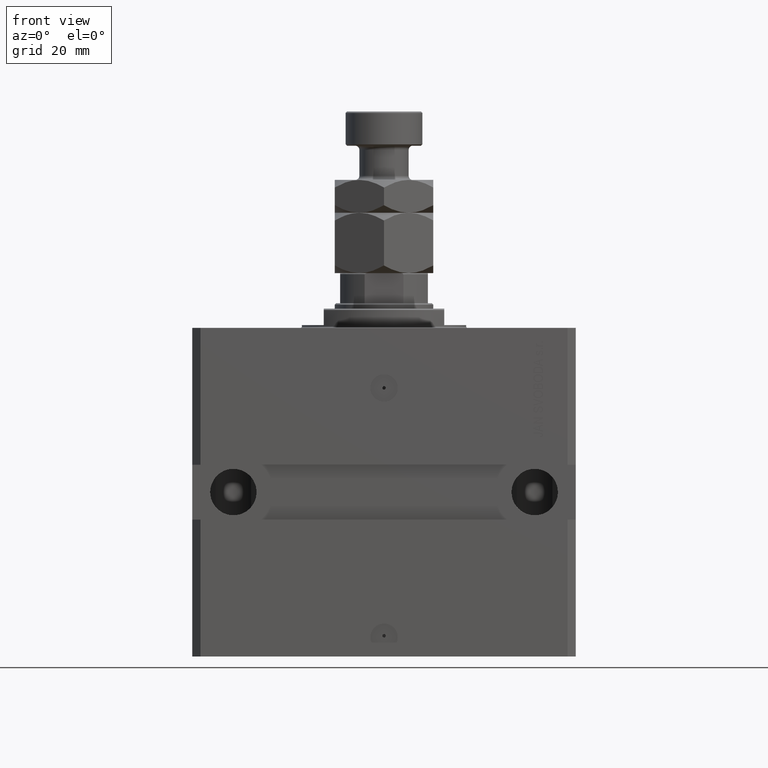
[diagram: clean part render]
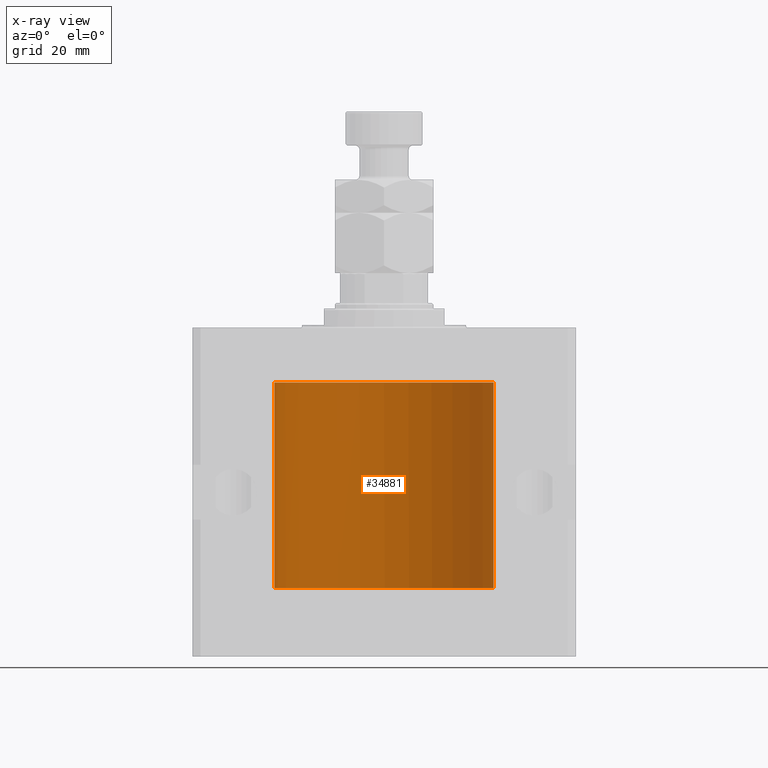
[diagram: x-ray — body ghosted, one internal face saturated and labeled with its STEP entity id]
A machine part, front view, then the same camera in x-ray: the body is ghosted and one INTERNAL B-rep face — a face not visible from any outside direction — is saturated and labeled: STEP entity #34881.
In plain terms, the highlighted cylindrical surface (partial cylindrical patch) has radius 40 mm, axis along (0, 0, 1).
Its self-contained STEP definition (entity closure, byte-faithful):
#1525 = CARTESIAN_POINT ( 'NONE',  ( -39.99627192929612107, 0.5584288736112177354, -94.67445463238748005 ) ) ;
#1540 = CARTESIAN_POINT ( 'NONE',  ( -39.99883108112248919, 0.3150272514608761787, -34.45401719637956717 ) ) ;
#2377 = EDGE_CURVE ( 'NONE', #7996, #30563, #8765, .T. ) ;
#4667 = AXIS2_PLACEMENT_3D ( 'NONE', #36893, #17590, #6495 ) ;
#4726 = CARTESIAN_POINT ( 'NONE',  ( -40.00000000000000000, 1.067655236296513633E-14, -34.37500000000000000 ) ) ;
#6157 = ORIENTED_EDGE ( 'NONE', *, *, #24530, .F. ) ;
#6243 = CARTESIAN_POINT ( 'NONE',  ( -40.00000000000012790, 9.803334896741571174E-13, -94.37499999999168665 ) ) ;
#6401 = DIRECTION ( 'NONE',  ( 0.000000000000000000, 0.000000000000000000, 1.000000000000000000 ) ) ;
#6495 = DIRECTION ( 'NONE',  ( 1.000000000000000000, 0.000000000000000000, 0.000000000000000000 ) ) ;
#7996 = VERTEX_POINT ( 'NONE', #27948 ) ;
#8765 = CIRCLE ( 'NONE', #21115, 40.00000000000000000 ) ;
#8773 = CARTESIAN_POINT ( 'NONE',  ( -40.00000000000000000, 0.08259175989844856625, -34.37500000000000711 ) ) ;
#9964 = CARTESIAN_POINT ( 'NONE',  ( -39.99819482034362039, 0.3843641341271077372, -34.50046008996472580 ) ) ;
#9989 = CARTESIAN_POINT ( 'NONE',  ( 0.000000000000000000, 0.000000000000000000, -20.00000000000000355 ) ) ;
#10212 = CARTESIAN_POINT ( 'NONE',  ( -39.99626798708276709, 0.5587118831704992461, -35.32511485424845432 ) ) ;
#10477 = CARTESIAN_POINT ( 'NONE',  ( -40.00000000000000000, 4.898587196589413026E-15, -95.00000000000000000 ) ) ;
#11755 = EDGE_CURVE ( 'NONE', #7996, #42630, #33236, .T. ) ;
#13793 = VECTOR ( 'NONE', #22103, 1000.000000000000000 ) ;
#13843 = CARTESIAN_POINT ( 'NONE',  ( -40.00000000000004974, 3.462873814982701370E-13, -35.62500000000321165 ) ) ;
#14355 = CARTESIAN_POINT ( 'NONE',  ( 40.00000000000000000, 0.000000000000000000, -20.00000000000000355 ) ) ;
#14485 = CARTESIAN_POINT ( 'NONE',  ( -40.00000000000000000, 4.898587196589413026E-15, -20.00000000000000355 ) ) ;
#14674 = FACE_OUTER_BOUND ( 'NONE', #20963, .T. ) ;
#15291 = VERTEX_POINT ( 'NONE', #4726 ) ;
#15480 = ORIENTED_EDGE ( 'NONE', *, *, #28623, .T. ) ;
#16233 = CARTESIAN_POINT ( 'NONE',  ( -39.99511688944039633, 0.6250000000000124345, -95.00000000000000000 ) ) ;
#16470 = CARTESIAN_POINT ( 'NONE',  ( -39.99511688944039633, 0.6250000000000127676, -94.83492185971167032 ) ) ;
#17258 = DIRECTION ( 'NONE',  ( 1.000000000000000000, 0.000000000000000000, 0.000000000000000000 ) ) ;
#17590 = DIRECTION ( 'NONE',  ( -0.000000000000000000, -0.000000000000000000, 1.000000000000000000 ) ) ;
#20035 = EDGE_CURVE ( 'NONE', #31128, #30563, #24807, .T. ) ;
#20880 = CARTESIAN_POINT ( 'NONE',  ( 0.000000000000000000, 0.000000000000000000, -95.00000000000000000 ) ) ;
#20963 = EDGE_LOOP ( 'NONE', ( #6157, #23305, #23067, #22814, #15480, #40264, #37480 ) ) ;
#21115 = AXIS2_PLACEMENT_3D ( 'NONE', #20880, #6401, #17258 ) ;
#22059 = EDGE_CURVE ( 'NONE', #15291, #25588, #31527, .T. ) ;
#22103 = DIRECTION ( 'NONE',  ( -0.000000000000000000, -0.000000000000000000, 1.000000000000000000 ) ) ;
#22814 = ORIENTED_EDGE ( 'NONE', *, *, #11755, .T. ) ;
#23067 = ORIENTED_EDGE ( 'NONE', *, *, #2377, .F. ) ;
#23084 = VECTOR ( 'NONE', #28587, 1000.000000000000000 ) ;
#23305 = ORIENTED_EDGE ( 'NONE', *, *, #20035, .T. ) ;
#23310 = EDGE_CURVE ( 'NONE', #15291, #25823, #43399, .T. ) ;
#24530 = EDGE_CURVE ( 'NONE', #31128, #25588, #32924, .T. ) ;
#24699 = CARTESIAN_POINT ( 'NONE',  ( -39.99884667815961592, 0.3253863549934230548, -35.55855380835959778 ) ) ;
#24807 = B_SPLINE_CURVE_WITH_KNOTS ( 'NONE', 3,
 ( #42081, #27563, #31677, #1525, #16470, #16233 ),
 .UNSPECIFIED., .F., .F.,
 ( 4, 2, 4 ),
 ( 0.0009772540344090913447, 0.001465458787294959039, 0.001953663540180826733 ),
 .UNSPECIFIED. ) ;
#25022 = CARTESIAN_POINT ( 'NONE',  ( -40.00000000000000000, 4.898587196589413026E-15, -95.00000000000000000 ) ) ;
#25219 = CARTESIAN_POINT ( 'NONE',  ( -39.99511688944039633, 0.6250000000000124345, -95.00000000000000000 ) ) ;
#25513 = DIRECTION ( 'NONE',  ( -0.000000000000000000, -0.000000000000000000, 1.000000000000000000 ) ) ;
#25588 = VERTEX_POINT ( 'NONE', #13843 ) ;
#25823 = VERTEX_POINT ( 'NONE', #14485 ) ;
#27111 = CARTESIAN_POINT ( 'NONE',  ( -40.00000000000000000, 1.067655236296513633E-14, -34.37500000000000000 ) ) ;
#27563 = CARTESIAN_POINT ( 'NONE',  ( -39.99999999999998579, 0.1629608811977192317, -94.37500000000035527 ) ) ;
#27948 = CARTESIAN_POINT ( 'NONE',  ( 40.00000000000000000, 0.000000000000000000, -95.00000000000000000 ) ) ;
#28059 = CARTESIAN_POINT ( 'NONE',  ( -39.99511598657579725, 0.6250577762831023287, -35.16284024614854076 ) ) ;
#28587 = DIRECTION ( 'NONE',  ( -0.000000000000000000, -0.000000000000000000, 1.000000000000000000 ) ) ;
#28623 = EDGE_CURVE ( 'NONE', #42630, #25823, #36857, .T. ) ;
#30563 = VERTEX_POINT ( 'NONE', #25219 ) ;
#30664 = AXIS2_PLACEMENT_3D ( 'NONE', #9989, #46964, #43345 ) ;
#31128 = VERTEX_POINT ( 'NONE', #6243 ) ;
#31527 = B_SPLINE_CURVE_WITH_KNOTS ( 'NONE', 3,
 ( #27111, #8773, #34606, #1540, #9964, #39189, #39687, #28059, #10212, #24699, #39922, #32180 ),
 .UNSPECIFIED., .F., .F.,
 ( 4, 2, 2, 2, 2, 4 ),
 ( 1.036137471307501474E-18, 0.0002442581846113557891, 0.0004885163692227106023, 0.0009770327384454201205, 0.001465549107668129639, 0.001954065476890838940 ),
 .UNSPECIFIED. ) ;
#31677 = CARTESIAN_POINT ( 'NONE',  ( -39.99884891268878562, 0.3251103027878634033, -94.44131772510861822 ) ) ;
#32180 = CARTESIAN_POINT ( 'NONE',  ( -40.00000000000004974, 3.462873814982701370E-13, -35.62500000000321165 ) ) ;
#32924 = LINE ( 'NONE', #10477, #23084 ) ;
#33236 = LINE ( 'NONE', #43890, #46738 ) ;
#34606 = CARTESIAN_POINT ( 'NONE',  ( -39.99973691478699322, 0.1636360998065314876, -34.39126145361714748 ) ) ;
#34881 = ADVANCED_FACE ( 'NONE', ( #14674 ), #47075, .F. ) ;
#36857 = CIRCLE ( 'NONE', #30664, 40.00000000000000000 ) ;
#36893 = CARTESIAN_POINT ( 'NONE',  ( 0.000000000000000000, 0.000000000000000000, -95.00000000000000000 ) ) ;
#37480 = ORIENTED_EDGE ( 'NONE', *, *, #22059, .T. ) ;
#39189 = CARTESIAN_POINT ( 'NONE',  ( -39.99628330279644928, 0.5573335244821722156, -34.67349122557948249 ) ) ;
#39687 = CARTESIAN_POINT ( 'NONE',  ( -39.99511779353280616, 0.6249421451454513221, -34.83671655111833587 ) ) ;
#39922 = CARTESIAN_POINT ( 'NONE',  ( -39.99999999999999289, 0.1631654129523948116, -35.62499999999986500 ) ) ;
#40264 = ORIENTED_EDGE ( 'NONE', *, *, #23310, .F. ) ;
#42081 = CARTESIAN_POINT ( 'NONE',  ( -40.00000000000012790, 9.803334896741571174E-13, -94.37499999999168665 ) ) ;
#42630 = VERTEX_POINT ( 'NONE', #14355 ) ;
#43345 = DIRECTION ( 'NONE',  ( 1.000000000000000000, 0.000000000000000000, 0.000000000000000000 ) ) ;
#43399 = LINE ( 'NONE', #25022, #13793 ) ;
#43890 = CARTESIAN_POINT ( 'NONE',  ( 40.00000000000000000, 0.000000000000000000, -95.00000000000000000 ) ) ;
#46738 = VECTOR ( 'NONE', #25513, 1000.000000000000000 ) ;
#46964 = DIRECTION ( 'NONE',  ( 0.000000000000000000, 0.000000000000000000, 1.000000000000000000 ) ) ;
#47075 = CYLINDRICAL_SURFACE ( 'NONE', #4667, 40.00000000000000000 ) ;